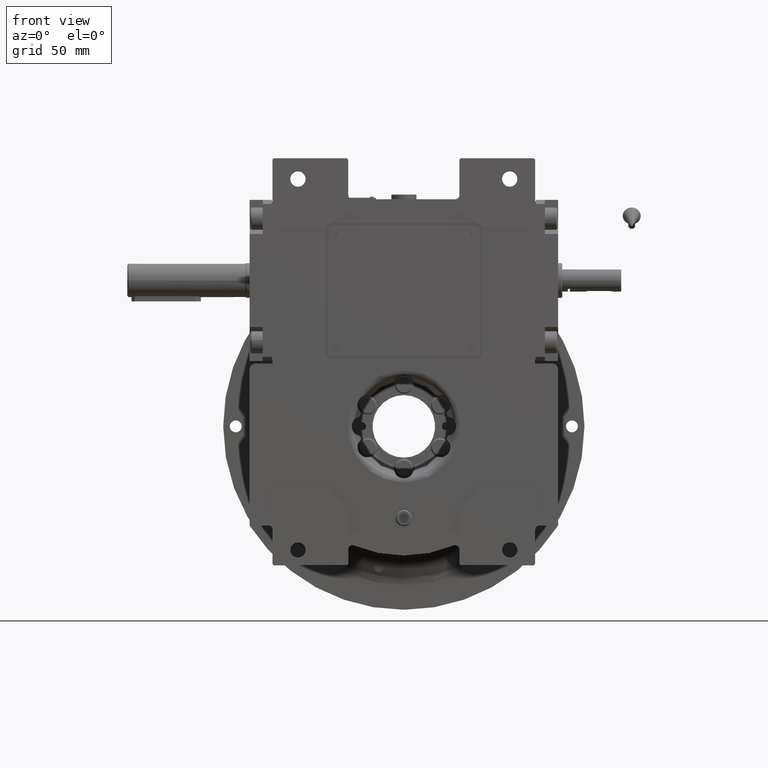
[diagram: clean part render]
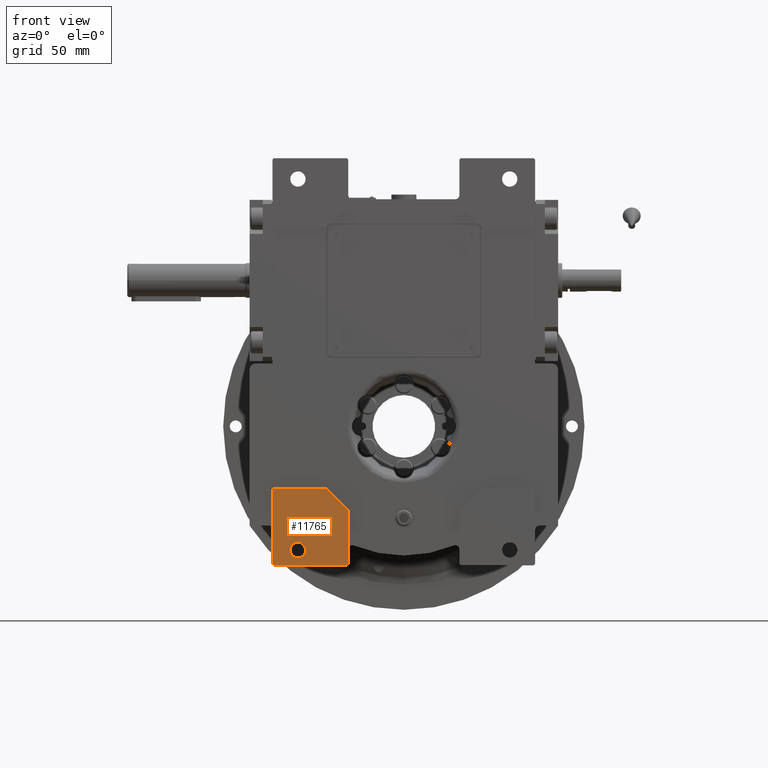
[diagram: same view with one face highlighted and labeled with its STEP entity id]
A machine part, front view. The second image highlights one B-rep face of the part: STEP entity #11765.
In plain terms, the highlighted planar face has unit normal (0, -1, 0).
Its self-contained STEP definition (entity closure, byte-faithful):
#602 = EDGE_CURVE ( 'NONE', #66594, #4871, #23478, .T. ) ;
#1759 = DIRECTION ( 'NONE',  ( 0.000000000000000000, -1.000000000000000000, 0.000000000000000000 ) ) ;
#2107 = CARTESIAN_POINT ( 'NONE',  ( 0.000000000000000000, -55.50000000000000000, 0.000000000000000000 ) ) ;
#4503 = VECTOR ( 'NONE', #64766, 1000.000000000000000 ) ;
#4871 = VERTEX_POINT ( 'NONE', #35208 ) ;
#4900 = CARTESIAN_POINT ( 'NONE',  ( -94.50000000000000000, -55.50000000000000000, -45.00000000000000000 ) ) ;
#5402 = EDGE_LOOP ( 'NONE', ( #52135, #29793, #8454, #59330, #14268, #16522, #35318 ) ) ;
#5471 = DIRECTION ( 'NONE',  ( -0.7071067811865474617, 0.000000000000000000, 0.7071067811865474617 ) ) ;
#6046 = LINE ( 'NONE', #63724, #4503 ) ;
#7203 = VECTOR ( 'NONE', #16143, 1000.000000000000000 ) ;
#7720 = CARTESIAN_POINT ( 'NONE',  ( -93.50000000000000000, -55.50000000000000000, -100.0000000000000000 ) ) ;
#8332 = EDGE_CURVE ( 'NONE', #65121, #66594, #32294, .T. ) ;
#8454 = ORIENTED_EDGE ( 'NONE', *, *, #33612, .T. ) ;
#10746 = DIRECTION ( 'NONE',  ( 0.7071067811865474617, 0.000000000000000000, 0.7071067811865474617 ) ) ;
#11765 = ADVANCED_FACE ( 'NONE', ( #32746, #12706 ), #38021, .T. ) ;
#12506 = EDGE_CURVE ( 'NONE', #37843, #65121, #54005, .T. ) ;
#12706 = FACE_OUTER_BOUND ( 'NONE', #5402, .T. ) ;
#14268 = ORIENTED_EDGE ( 'NONE', *, *, #8332, .T. ) ;
#16143 = DIRECTION ( 'NONE',  ( -1.000000000000000000, 0.000000000000000000, 0.000000000000000000 ) ) ;
#16522 = ORIENTED_EDGE ( 'NONE', *, *, #602, .T. ) ;
#16750 = CARTESIAN_POINT ( 'NONE',  ( -40.00000000000000000, -55.50000000000000000, -60.00000000000000000 ) ) ;
#23053 = CARTESIAN_POINT ( 'NONE',  ( -76.20000000000000284, -55.50000000000000000, -89.00000000000000000 ) ) ;
#23478 = LINE ( 'NONE', #40719, #66950 ) ;
#23555 = DIRECTION ( 'NONE',  ( -1.000000000000000000, 0.000000000000000000, 0.000000000000000000 ) ) ;
#25541 = VERTEX_POINT ( 'NONE', #60679 ) ;
#27250 = CARTESIAN_POINT ( 'NONE',  ( -41.00000000000000000, -55.50000000000000000, -100.0000000000000000 ) ) ;
#27277 = CIRCLE ( 'NONE', #51965, 5.500000000000005329 ) ;
#27296 = DIRECTION ( 'NONE',  ( 0.000000000000000000, 1.000000000000000000, 0.000000000000000000 ) ) ;
#27980 = DIRECTION ( 'NONE',  ( 1.000000000000000000, 0.000000000000000000, 0.000000000000000000 ) ) ;
#29543 = ORIENTED_EDGE ( 'NONE', *, *, #57185, .T. ) ;
#29793 = ORIENTED_EDGE ( 'NONE', *, *, #61851, .T. ) ;
#31490 = ORIENTED_EDGE ( 'NONE', *, *, #40831, .T. ) ;
#32158 = DIRECTION ( 'NONE',  ( 0.7071067811865474617, 0.000000000000000000, -0.7071067811865474617 ) ) ;
#32294 = LINE ( 'NONE', #37237, #7203 ) ;
#32746 = FACE_BOUND ( 'NONE', #45496, .T. ) ;
#33304 = CARTESIAN_POINT ( 'NONE',  ( -55.00000000000000000, -55.50000000000000000, -45.00000000000000000 ) ) ;
#33612 = EDGE_CURVE ( 'NONE', #42717, #37843, #46583, .T. ) ;
#35000 = CARTESIAN_POINT ( 'NONE',  ( -70.70000000000000284, -55.50000000000000000, -89.00000000000000000 ) ) ;
#35208 = CARTESIAN_POINT ( 'NONE',  ( -94.50000000000000000, -55.50000000000000000, -99.00000000000000000 ) ) ;
#35318 = ORIENTED_EDGE ( 'NONE', *, *, #52795, .T. ) ;
#35542 = VECTOR ( 'NONE', #10746, 1000.000000000000114 ) ;
#35645 = DIRECTION ( 'NONE',  ( -1.000000000000000000, 0.000000000000000000, 0.000000000000000000 ) ) ;
#35793 = CARTESIAN_POINT ( 'NONE',  ( -81.69999999999998863, -55.50000000000000000, -89.00000000000000000 ) ) ;
#37237 = CARTESIAN_POINT ( 'NONE',  ( -55.00000000000000000, -55.50000000000000000, -45.00000000000000000 ) ) ;
#37468 = VERTEX_POINT ( 'NONE', #7720 ) ;
#37642 = VECTOR ( 'NONE', #62738, 1000.000000000000000 ) ;
#37843 = VERTEX_POINT ( 'NONE', #65648 ) ;
#37861 = CARTESIAN_POINT ( 'NONE',  ( -40.00000000000000000, -55.50000000000000000, -99.00000000000000000 ) ) ;
#38021 = PLANE ( 'NONE',  #68055 ) ;
#39684 = VERTEX_POINT ( 'NONE', #35000 ) ;
#40114 = CIRCLE ( 'NONE', #68147, 5.500000000000005329 ) ;
#40719 = CARTESIAN_POINT ( 'NONE',  ( -94.50000000000000000, -55.50000000000000000, -45.00000000000000000 ) ) ;
#40831 = EDGE_CURVE ( 'NONE', #39684, #58743, #40114, .T. ) ;
#41316 = CARTESIAN_POINT ( 'NONE',  ( -40.00000000000000000, -55.50000000000000000, -99.00000000000000000 ) ) ;
#41692 = CARTESIAN_POINT ( 'NONE',  ( -94.50000000000000000, -55.50000000000000000, -99.00000000000000000 ) ) ;
#42717 = VERTEX_POINT ( 'NONE', #37861 ) ;
#45496 = EDGE_LOOP ( 'NONE', ( #31490, #29543 ) ) ;
#46583 = LINE ( 'NONE', #41316, #37642 ) ;
#49324 = VECTOR ( 'NONE', #32158, 1000.000000000000114 ) ;
#51965 = AXIS2_PLACEMENT_3D ( 'NONE', #67624, #61319, #35645 ) ;
#52135 = ORIENTED_EDGE ( 'NONE', *, *, #65977, .T. ) ;
#52795 = EDGE_CURVE ( 'NONE', #4871, #37468, #69400, .T. ) ;
#54005 = LINE ( 'NONE', #16750, #56968 ) ;
#56968 = VECTOR ( 'NONE', #5471, 1000.000000000000114 ) ;
#57185 = EDGE_CURVE ( 'NONE', #58743, #39684, #27277, .T. ) ;
#58743 = VERTEX_POINT ( 'NONE', #35793 ) ;
#59330 = ORIENTED_EDGE ( 'NONE', *, *, #12506, .T. ) ;
#60679 = CARTESIAN_POINT ( 'NONE',  ( -41.00000000000000000, -55.50000000000000000, -100.0000000000000000 ) ) ;
#61319 = DIRECTION ( 'NONE',  ( 0.000000000000000000, 1.000000000000000000, 0.000000000000000000 ) ) ;
#61851 = EDGE_CURVE ( 'NONE', #25541, #42717, #64524, .T. ) ;
#62146 = DIRECTION ( 'NONE',  ( 0.000000000000000000, 0.000000000000000000, -1.000000000000000000 ) ) ;
#62738 = DIRECTION ( 'NONE',  ( 0.000000000000000000, 0.000000000000000000, 1.000000000000000000 ) ) ;
#63724 = CARTESIAN_POINT ( 'NONE',  ( -93.50000000000000000, -55.50000000000000000, -100.0000000000000000 ) ) ;
#64524 = LINE ( 'NONE', #27250, #35542 ) ;
#64766 = DIRECTION ( 'NONE',  ( 1.000000000000000000, 0.000000000000000000, 0.000000000000000000 ) ) ;
#65121 = VERTEX_POINT ( 'NONE', #33304 ) ;
#65648 = CARTESIAN_POINT ( 'NONE',  ( -40.00000000000000000, -55.50000000000000000, -60.00000000000000000 ) ) ;
#65977 = EDGE_CURVE ( 'NONE', #37468, #25541, #6046, .T. ) ;
#66594 = VERTEX_POINT ( 'NONE', #4900 ) ;
#66950 = VECTOR ( 'NONE', #62146, 1000.000000000000000 ) ;
#67624 = CARTESIAN_POINT ( 'NONE',  ( -76.20000000000000284, -55.50000000000000000, -89.00000000000000000 ) ) ;
#68055 = AXIS2_PLACEMENT_3D ( 'NONE', #2107, #1759, #23555 ) ;
#68147 = AXIS2_PLACEMENT_3D ( 'NONE', #23053, #27296, #27980 ) ;
#69400 = LINE ( 'NONE', #41692, #49324 ) ;